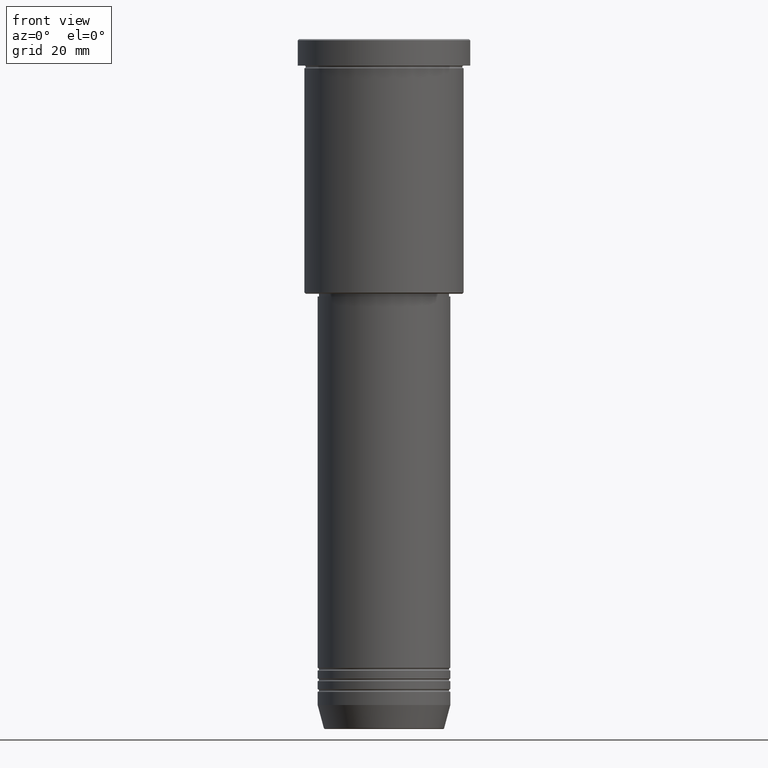
[diagram: clean part render]
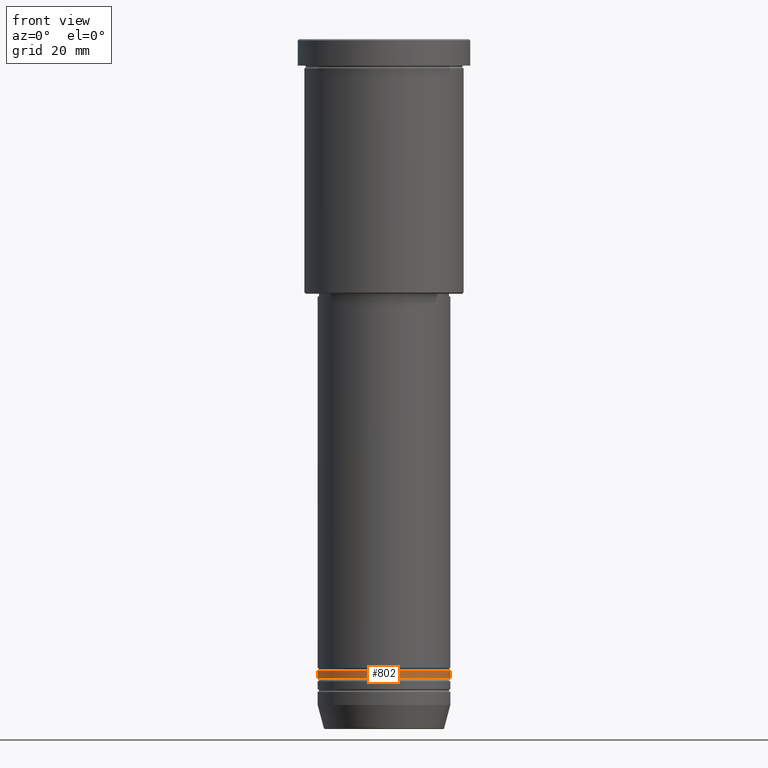
[diagram: same view with one face highlighted and labeled with its STEP entity id]
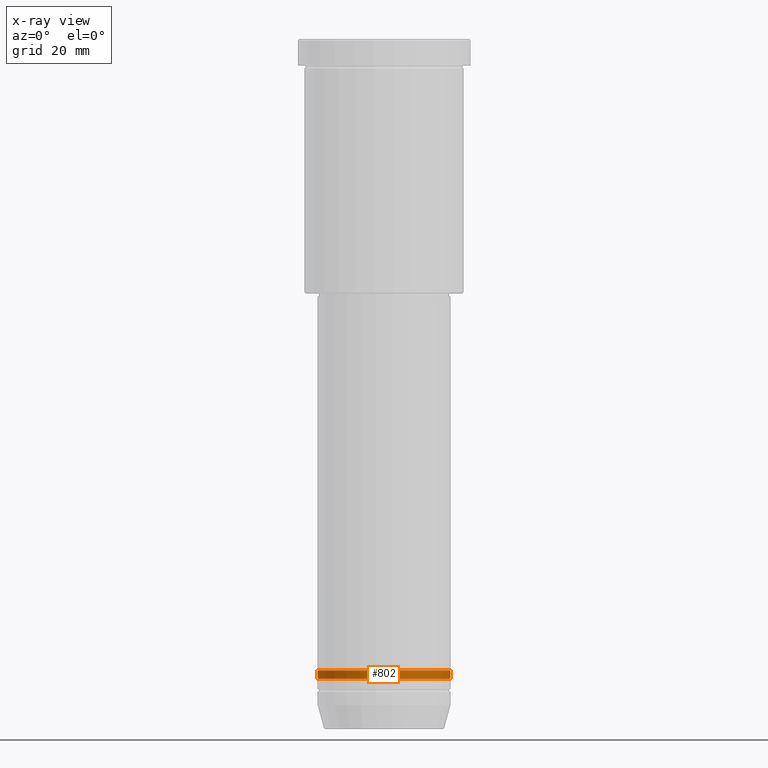
[diagram: x-ray of the same camera — body ghosted, the highlighted face saturated]
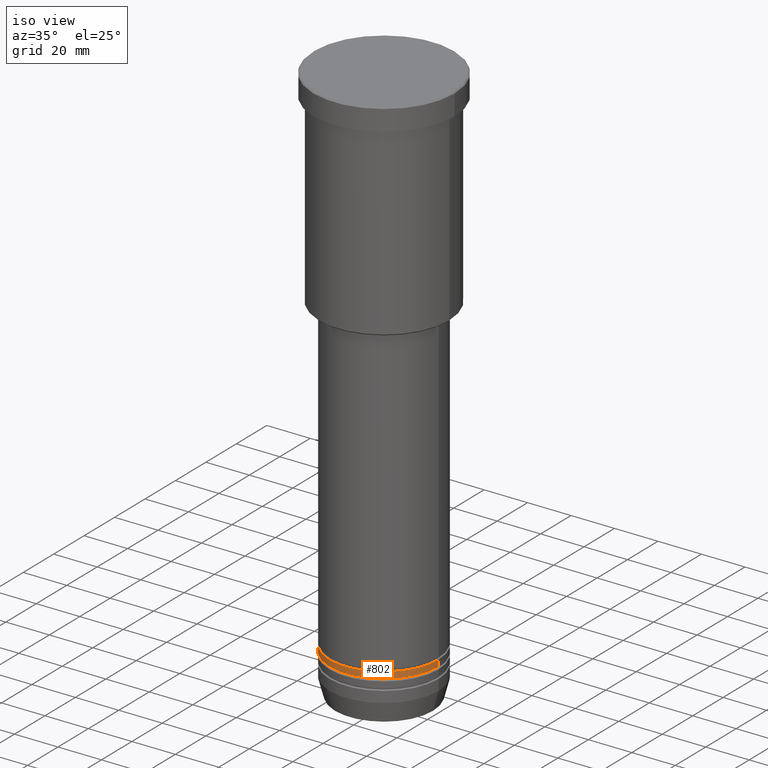
[diagram: same view with one face highlighted and labeled with its STEP entity id]
A machine part, front view. The second image highlights one B-rep face of the part: STEP entity #802.
The next image is the same camera in x-ray: the body ghosted, the highlighted face saturated — about 0% of this face is hidden behind the body in this view.
A second angle (iso view) of the same face is appended — the face is thin or edge-on in the first view.
In plain terms, the highlighted cylindrical surface (partial cylindrical patch) has radius 25 mm, axis along (-0, -0, 1).
Its self-contained STEP definition (entity closure, byte-faithful):
#1 = DIRECTION ( 'NONE',  ( 1.000000000000000000, 0.000000000000000000, 0.000000000000000000 ) ) ;
#6 = CARTESIAN_POINT ( 'NONE',  ( 25.00000000000000000, 0.000000000000000000, -238.0000000000000000 ) ) ;
#20 = DIRECTION ( 'NONE',  ( -0.000000000000000000, -0.000000000000000000, 1.000000000000000000 ) ) ;
#21 = LINE ( 'NONE', #667, #506 ) ;
#22 = VERTEX_POINT ( 'NONE', #6 ) ;
#166 = CIRCLE ( 'NONE', #845, 25.00000000000000355 ) ;
#194 = CARTESIAN_POINT ( 'NONE',  ( 0.000000000000000000, 0.000000000000000000, -238.0000000000000000 ) ) ;
#200 = VECTOR ( 'NONE', #778, 1000.000000000000000 ) ;
#359 = ORIENTED_EDGE ( 'NONE', *, *, #1122, .T. ) ;
#403 = LINE ( 'NONE', #611, #200 ) ;
#417 = EDGE_CURVE ( 'NONE', #1076, #613, #166, .T. ) ;
#435 = EDGE_CURVE ( 'NONE', #893, #22, #521, .T. ) ;
#477 = ORIENTED_EDGE ( 'NONE', *, *, #417, .T. ) ;
#506 = VECTOR ( 'NONE', #645, 1000.000000000000000 ) ;
#521 = CIRCLE ( 'NONE', #908, 25.00000000000000000 ) ;
#571 = CARTESIAN_POINT ( 'NONE',  ( -25.00000000000000000, 3.061616997868383043E-15, -238.0000000000000000 ) ) ;
#587 = ORIENTED_EDGE ( 'NONE', *, *, #435, .F. ) ;
#594 = DIRECTION ( 'NONE',  ( -0.000000000000000000, -0.000000000000000000, 1.000000000000000000 ) ) ;
#596 = EDGE_LOOP ( 'NONE', ( #754, #477, #359, #587 ) ) ;
#611 = CARTESIAN_POINT ( 'NONE',  ( 25.00000000000000000, 0.000000000000000000, 0.000000000000000000 ) ) ;
#613 = VERTEX_POINT ( 'NONE', #1042 ) ;
#618 = AXIS2_PLACEMENT_3D ( 'NONE', #955, #594, #692 ) ;
#645 = DIRECTION ( 'NONE',  ( -0.000000000000000000, -0.000000000000000000, 1.000000000000000000 ) ) ;
#667 = CARTESIAN_POINT ( 'NONE',  ( -25.00000000000000000, 3.061616997868383043E-15, 0.000000000000000000 ) ) ;
#692 = DIRECTION ( 'NONE',  ( 1.000000000000000000, 0.000000000000000000, 0.000000000000000000 ) ) ;
#754 = ORIENTED_EDGE ( 'NONE', *, *, #949, .F. ) ;
#778 = DIRECTION ( 'NONE',  ( -0.000000000000000000, -0.000000000000000000, 1.000000000000000000 ) ) ;
#781 = FACE_OUTER_BOUND ( 'NONE', #596, .T. ) ;
#802 = ADVANCED_FACE ( 'NONE', ( #781 ), #1033, .T. ) ;
#845 = AXIS2_PLACEMENT_3D ( 'NONE', #857, #20, #1 ) ;
#857 = CARTESIAN_POINT ( 'NONE',  ( 0.000000000000000000, 0.000000000000000000, -241.0000000000000000 ) ) ;
#893 = VERTEX_POINT ( 'NONE', #571 ) ;
#908 = AXIS2_PLACEMENT_3D ( 'NONE', #194, #1026, #950 ) ;
#949 = EDGE_CURVE ( 'NONE', #1076, #893, #21, .T. ) ;
#950 = DIRECTION ( 'NONE',  ( 1.000000000000000000, 0.000000000000000000, 0.000000000000000000 ) ) ;
#955 = CARTESIAN_POINT ( 'NONE',  ( 0.000000000000000000, 0.000000000000000000, 0.000000000000000000 ) ) ;
#1026 = DIRECTION ( 'NONE',  ( -0.000000000000000000, -0.000000000000000000, 1.000000000000000000 ) ) ;
#1033 = CYLINDRICAL_SURFACE ( 'NONE', #618, 25.00000000000000000 ) ;
#1042 = CARTESIAN_POINT ( 'NONE',  ( 25.00000000000000355, 0.000000000000000000, -241.0000000000000000 ) ) ;
#1043 = CARTESIAN_POINT ( 'NONE',  ( -25.00000000000000711, 3.061616997868383831E-15, -241.0000000000000000 ) ) ;
#1076 = VERTEX_POINT ( 'NONE', #1043 ) ;
#1122 = EDGE_CURVE ( 'NONE', #613, #22, #403, .T. ) ;